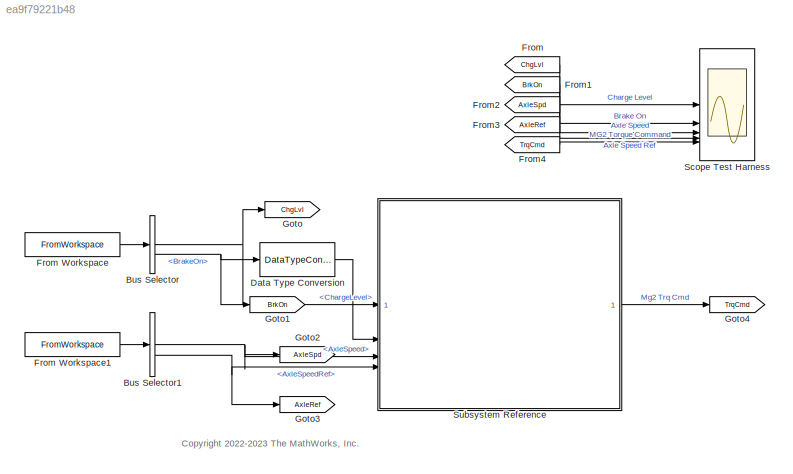
MODEL mdl_ea9f79221b48
KIND model
CONFIG AbsTol = auto
CONFIG EnableMultiTasking = off
CONFIG FixedStep = auto
CONFIG MaxStep = auto
CONFIG MinStep = auto
CONFIG PreLoadFcn = MG2Controller_Setup\n
CONFIG RelTol = 1e-3
CONFIG SampleTimeConstraint = Unconstrained
CONFIG SolverName = VariableStepAuto
CONFIG StartTime = 0.0
CONFIG StopTime = 10.0
BLOCK [BusSelector] Bus Selector
  OutputSignals = ChargeLevel,BrakeOn
BLOCK [BusSelector] Bus Selector1
  OutputSignals = AxleSpeed,AxleSpeedRef
BLOCK [DataTypeConversion] Data Type Conversion
  OutDataTypeStr = boolean
  RndMeth = Floor
  SaturateOnIntegerOverflow = off
BLOCK [From] From
  GotoTag = ChgLvl
  NameLocation = left
BLOCK [FromWorkspace] From Workspace
  AttributesFormatString = %<OutDataTypeStr>\nInterpolate: %<Interpolate>
  Interpolate = off
  OutDataTypeStr = Bus: inputBus
  OutputAfterFinalValue = Holding final value
  VariableName = inputSignals
BLOCK [FromWorkspace] From Workspace1
  AttributesFormatString = %<OutDataTypeStr>\nInterpolate: %<Interpolate>
  OutDataTypeStr = Bus: inputBus
  OutputAfterFinalValue = Holding final value
  VariableName = inputSignals
BLOCK [From] From1
  GotoTag = BrkOn
  NameLocation = left
BLOCK [From] From2
  GotoTag = AxleSpd
  NameLocation = left
BLOCK [From] From3
  GotoTag = AxleRef
  NameLocation = left
BLOCK [From] From4
  GotoTag = TrqCmd
BLOCK [Goto] Goto
  GotoTag = ChgLvl
BLOCK [Goto] Goto1
  GotoTag = BrkOn
BLOCK [Goto] Goto2
  GotoTag = AxleSpd
BLOCK [Goto] Goto3
  GotoTag = AxleRef
BLOCK [Goto] Goto4
  GotoTag = TrqCmd
BLOCK [Scope] Scope Test Harness
  Floating = off
  NumInputPorts = 5
  ScopeSpecificationString = Simulink.scopes.TimeScopeBlockCfg('CurrentConfiguration', extmgr.ConfigurationSet(extmgr.Configuration('Core','General UI',true),extmgr.Configuration('Core','Source UI',true),extmgr.Configuration('Sources','WiredSimulink',true),extmgr.Configuration('Visuals','Time Domain',true,'SerializedDisplays',{struct('MinYLimReal','1.00000','MaxYLimReal','3.00000','YLabelReal','','MinYLimMag','1.00000','MaxYL...<+4857ch>
BLOCK [SubSystem] Subsystem Reference
  ReferencedSubsystem = MG2Controller_HEVPowerSplit_refsub
ANNOTATION (root): <copyright redacted>
NET Bus Selector1:1 -> Goto2:1, Subsystem Reference:3
NET Bus Selector1:2 -> Goto3:1, Subsystem Reference:4
NET Bus Selector:1 -> Goto:1, Subsystem Reference:1
NET Bus Selector:2 -> Data Type Conversion:1, Goto1:1
LINE Data Type Conversion:1 -> Subsystem Reference:2
LINE From Workspace1:1 -> Bus Selector1:1
LINE From Workspace:1 -> Bus Selector:1
LINE From1:1 -> Scope Test Harness:2
LINE From2:1 -> Scope Test Harness:3
LINE From3:1 -> Scope Test Harness:4
LINE From4:1 -> Scope Test Harness:5
LINE From:1 -> Scope Test Harness:1
LINE Subsystem Reference:1 -> Goto4:1
note: NET lines group one-source signal fan-out (src -> all destinations, sorted); 1:1 wires keep LINE
